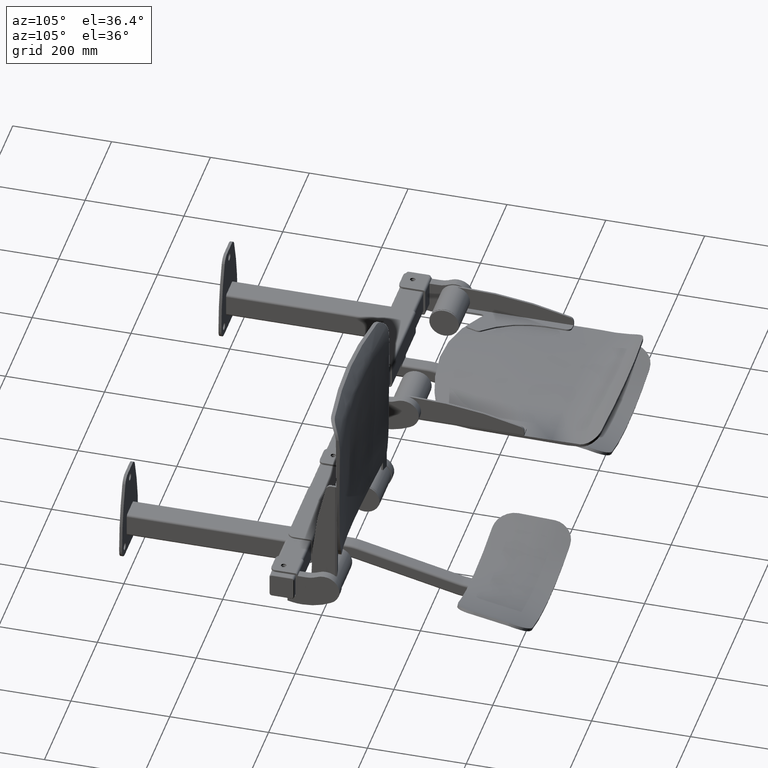
[diagram: clean part render]
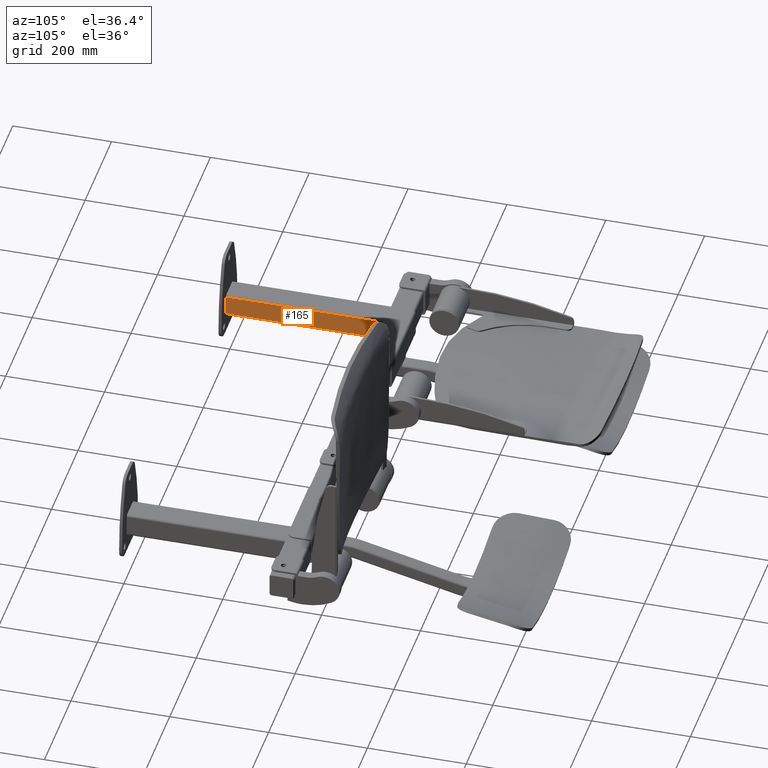
[diagram: same view with one face highlighted and labeled with its STEP entity id]
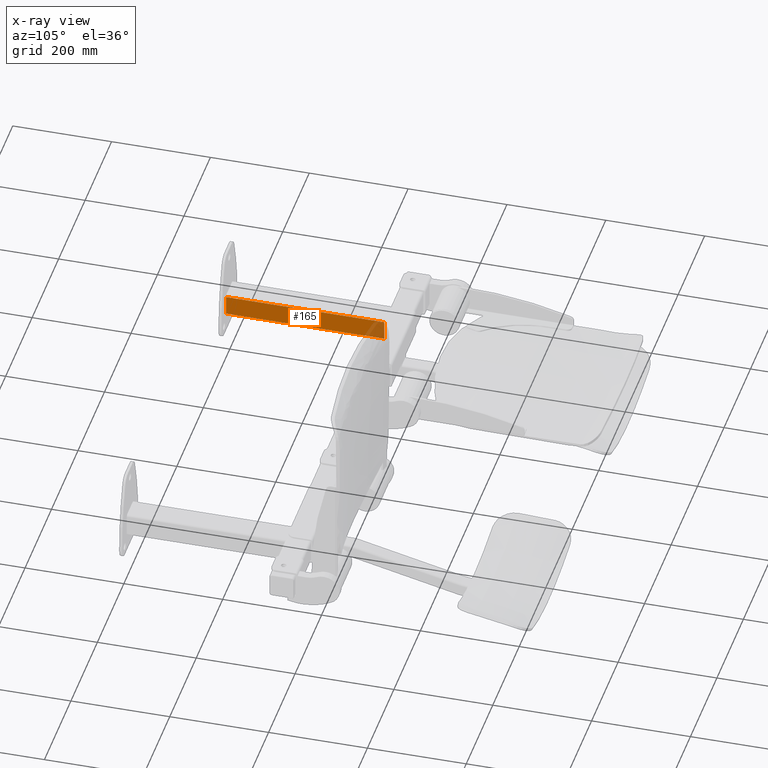
[diagram: x-ray of the same camera — body ghosted, the highlighted face saturated]
A machine part, auxiliary view. The second image highlights one B-rep face of the part: STEP entity #165.
The next image is the same camera in x-ray: the body ghosted, the highlighted face saturated — about 9% of this face is hidden behind the body in this view.
In plain terms, the highlighted planar face has unit normal (-1, 0, 0).
Its self-contained STEP definition (entity closure, byte-faithful):
#165 = ADVANCED_FACE ( 'NONE', ( #3968 ), #23564, .F. ) ;
#1026 = EDGE_LOOP ( 'NONE', ( #3133, #3134, #3135, #3136 ) ) ;
#1374 = EDGE_CURVE ( 'NONE', #2631, #2640, #10285, .T. ) ;
#2010 = EDGE_CURVE ( 'NONE', #2640, #2697, #10380, .T. ) ;
#2011 = EDGE_CURVE ( 'NONE', #2688, #2697, #10378, .T. ) ;
#2012 = EDGE_CURVE ( 'NONE', #2688, #2631, #10376, .T. ) ;
#2099 = AXIS2_PLACEMENT_3D ( 'NONE', #23563, #23570, #23569 ) ;
#2631 = VERTEX_POINT ( 'NONE', #12787 ) ;
#2640 = VERTEX_POINT ( 'NONE', #12792 ) ;
#2688 = VERTEX_POINT ( 'NONE', #12817 ) ;
#2697 = VERTEX_POINT ( 'NONE', #12822 ) ;
#3133 = ORIENTED_EDGE ( 'NONE', *, *, #1374, .T. ) ;
#3134 = ORIENTED_EDGE ( 'NONE', *, *, #2010, .T. ) ;
#3135 = ORIENTED_EDGE ( 'NONE', *, *, #2011, .F. ) ;
#3136 = ORIENTED_EDGE ( 'NONE', *, *, #2012, .T. ) ;
#3968 = FACE_OUTER_BOUND ( 'NONE', #1026, .T. ) ;
#10109 = CARTESIAN_POINT ( 'NONE',  ( -350.0000000000000000, 6.000000000000000000, 25.00000000000000000 ) ) ;
#10110 = DIRECTION ( 'NONE',  ( -0.0000000000000000000, -0.0000000000000000000, -1.000000000000000000 ) ) ;
#10285 = LINE ( 'NONE', #10109, #10287 ) ;
#10287 = VECTOR ( 'NONE', #10110, 1000.000000000000000 ) ;
#10374 = VECTOR ( 'NONE', #10637, 1000.000000000000000 ) ;
#10376 = LINE ( 'NONE', #10630, #10385 ) ;
#10377 = VECTOR ( 'NONE', #10634, 1000.000000000000000 ) ;
#10378 = LINE ( 'NONE', #10635, #10374 ) ;
#10380 = LINE ( 'NONE', #10633, #10377 ) ;
#10385 = VECTOR ( 'NONE', #10638, 1000.000000000000000 ) ;
#10630 = CARTESIAN_POINT ( 'NONE',  ( -350.0000000000000000, 6.000000000000000000, 20.00000000000000000 ) ) ;
#10633 = CARTESIAN_POINT ( 'NONE',  ( -349.9999999999999400, 326.0000000000000000, -19.99999999999999600 ) ) ;
#10634 = DIRECTION ( 'NONE',  ( 1.734723475976807100E-016, 1.000000000000000000, 0.0000000000000000000 ) ) ;
#10635 = CARTESIAN_POINT ( 'NONE',  ( -349.9999999999999400, 326.0000000000000000, 25.00000000000000000 ) ) ;
#10637 = DIRECTION ( 'NONE',  ( -0.0000000000000000000, -0.0000000000000000000, -1.000000000000000000 ) ) ;
#10638 = DIRECTION ( 'NONE',  ( -1.734723475976807100E-016, -1.000000000000000000, -0.0000000000000000000 ) ) ;
#12787 = CARTESIAN_POINT ( 'NONE',  ( -350.0000000000000000, 6.000000000000000000, 20.00000000000000000 ) ) ;
#12792 = CARTESIAN_POINT ( 'NONE',  ( -350.0000000000000000, 6.000000000000000000, -19.99999999999999600 ) ) ;
#12817 = CARTESIAN_POINT ( 'NONE',  ( -349.9999999999999400, 326.0000000000000000, 20.00000000000000000 ) ) ;
#12822 = CARTESIAN_POINT ( 'NONE',  ( -349.9999999999999400, 326.0000000000000000, -19.99999999999999600 ) ) ;
#23563 = CARTESIAN_POINT ( 'NONE',  ( -350.0000000000000000, 6.000000000000000000, 25.00000000000000000 ) ) ;
#23564 = PLANE ( 'NONE',  #2099 ) ;
#23569 = DIRECTION ( 'NONE',  ( -1.734723475976807100E-016, -1.000000000000000000, 0.0000000000000000000 ) ) ;
#23570 = DIRECTION ( 'NONE',  ( -1.000000000000000000, 1.734723475976807100E-016, 0.0000000000000000000 ) ) ;